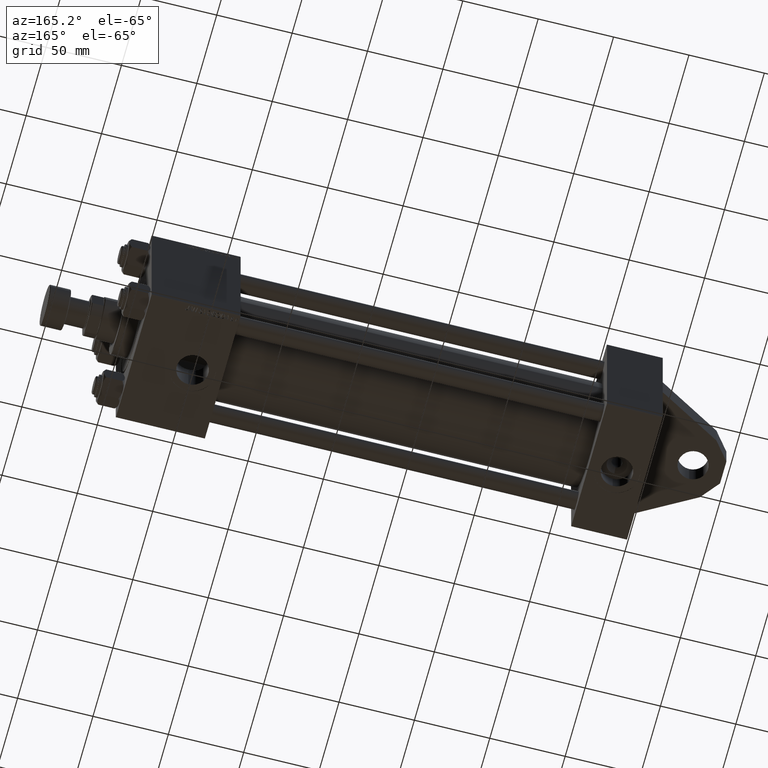
[diagram: clean part render]
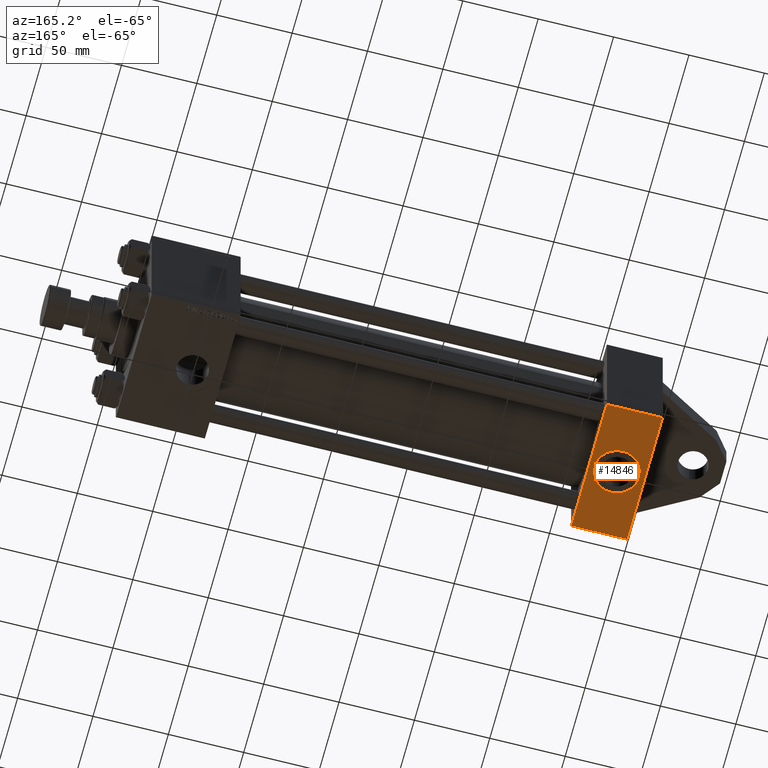
[diagram: same view with one face highlighted and labeled with its STEP entity id]
A machine part, auxiliary view. The second image highlights one B-rep face of the part: STEP entity #14846.
In plain terms, the highlighted planar face has unit normal (0, -0, 1).
Its self-contained STEP definition (entity closure, byte-faithful):
#268 = CIRCLE ( 'NONE', #45816, 15.00000000000000178 ) ;
#504 = CARTESIAN_POINT ( 'NONE',  ( 37.00000000000000000, -45.00000000000000711, 44.49999999999997158 ) ) ;
#836 = EDGE_CURVE ( 'NONE', #8332, #40978, #268, .T. ) ;
#1457 = DIRECTION ( 'NONE',  ( -0.000000000000000000, 1.000000000000000000, 7.709882115452478166E-17 ) ) ;
#3033 = ORIENTED_EDGE ( 'NONE', *, *, #37387, .T. ) ;
#3135 = LINE ( 'NONE', #22288, #22283 ) ;
#3776 = DIRECTION ( 'NONE',  ( 0.000000000000000000, 0.000000000000000000, -1.000000000000000000 ) ) ;
#5208 = CARTESIAN_POINT ( 'NONE',  ( 18.50000000000000000, -45.00000000000000000, -3.469446951953614978E-15 ) ) ;
#5698 = CARTESIAN_POINT ( 'NONE',  ( 18.50000000000000355, -45.00000000000000000, 14.99999999999999822 ) ) ;
#6830 = VERTEX_POINT ( 'NONE', #46118 ) ;
#8332 = VERTEX_POINT ( 'NONE', #5698 ) ;
#8487 = EDGE_CURVE ( 'NONE', #27273, #17897, #18452, .T. ) ;
#8751 = ORIENTED_EDGE ( 'NONE', *, *, #836, .F. ) ;
#8826 = PLANE ( 'NONE',  #9294 ) ;
#9294 = AXIS2_PLACEMENT_3D ( 'NONE', #35137, #1457, #39301 ) ;
#10035 = DIRECTION ( 'NONE',  ( -1.000000000000000000, 0.000000000000000000, 0.000000000000000000 ) ) ;
#10051 = ORIENTED_EDGE ( 'NONE', *, *, #22357, .F. ) ;
#11437 = VECTOR ( 'NONE', #18301, 1000.000000000000000 ) ;
#14112 = EDGE_LOOP ( 'NONE', ( #10051, #8751 ) ) ;
#14194 = ORIENTED_EDGE ( 'NONE', *, *, #42780, .T. ) ;
#14745 = CARTESIAN_POINT ( 'NONE',  ( 37.00000000000000000, -45.00000000000000711, 45.00000000000000000 ) ) ;
#14846 = ADVANCED_FACE ( 'NONE', ( #27507, #27750 ), #8826, .F. ) ;
#14883 = DIRECTION ( 'NONE',  ( 1.000000000000000000, 0.000000000000000000, 0.000000000000000000 ) ) ;
#15054 = CARTESIAN_POINT ( 'NONE',  ( 18.50000000000000000, -45.00000000000000000, -3.469446951953614978E-15 ) ) ;
#15080 = LINE ( 'NONE', #45072, #11437 ) ;
#16739 = DIRECTION ( 'NONE',  ( 0.000000000000000000, -1.000000000000000000, -8.673617379884036705E-17 ) ) ;
#17897 = VERTEX_POINT ( 'NONE', #30123 ) ;
#18046 = EDGE_LOOP ( 'NONE', ( #32935, #3033, #36113, #14194 ) ) ;
#18301 = DIRECTION ( 'NONE',  ( 0.000000000000000000, 7.709882115452476934E-17, -1.000000000000000000 ) ) ;
#18452 = LINE ( 'NONE', #14745, #34309 ) ;
#19216 = CARTESIAN_POINT ( 'NONE',  ( 18.50000000000000000, -45.00000000000000000, -15.00000000000000533 ) ) ;
#22283 = VECTOR ( 'NONE', #14883, 1000.000000000000000 ) ;
#22288 = CARTESIAN_POINT ( 'NONE',  ( 37.00000000000000000, -45.00000000000000000, -44.49999999999998579 ) ) ;
#22357 = EDGE_CURVE ( 'NONE', #40978, #8332, #33101, .T. ) ;
#24134 = DIRECTION ( 'NONE',  ( 0.000000000000000000, 0.000000000000000000, -1.000000000000000000 ) ) ;
#27273 = VERTEX_POINT ( 'NONE', #504 ) ;
#27507 = FACE_BOUND ( 'NONE', #14112, .T. ) ;
#27750 = FACE_OUTER_BOUND ( 'NONE', #18046, .T. ) ;
#30123 = CARTESIAN_POINT ( 'NONE',  ( 37.00000000000000000, -45.00000000000000000, -44.49999999999995737 ) ) ;
#32935 = ORIENTED_EDGE ( 'NONE', *, *, #45443, .T. ) ;
#33101 = CIRCLE ( 'NONE', #41704, 15.00000000000000178 ) ;
#34309 = VECTOR ( 'NONE', #46434, 1000.000000000000000 ) ;
#35137 = CARTESIAN_POINT ( 'NONE',  ( 37.00000000000000000, -45.00000000000000711, 45.00000000000000000 ) ) ;
#36113 = ORIENTED_EDGE ( 'NONE', *, *, #8487, .F. ) ;
#36839 = CARTESIAN_POINT ( 'NONE',  ( 0.000000000000000000, -45.00000000000000711, 44.49999999999997158 ) ) ;
#37387 = EDGE_CURVE ( 'NONE', #6830, #17897, #3135, .T. ) ;
#37435 = DIRECTION ( 'NONE',  ( 0.000000000000000000, -1.000000000000000000, -8.673617379884036705E-17 ) ) ;
#39301 = DIRECTION ( 'NONE',  ( 0.000000000000000000, -7.709882115452478166E-17, 1.000000000000000000 ) ) ;
#39444 = VERTEX_POINT ( 'NONE', #36839 ) ;
#40978 = VERTEX_POINT ( 'NONE', #19216 ) ;
#41704 = AXIS2_PLACEMENT_3D ( 'NONE', #15054, #37435, #3776 ) ;
#42780 = EDGE_CURVE ( 'NONE', #27273, #39444, #48112, .T. ) ;
#43564 = VECTOR ( 'NONE', #10035, 1000.000000000000000 ) ;
#43702 = CARTESIAN_POINT ( 'NONE',  ( 37.00000000000000000, -45.00000000000000711, 44.49999999999997158 ) ) ;
#45072 = CARTESIAN_POINT ( 'NONE',  ( 0.000000000000000000, -45.00000000000000711, 45.00000000000000000 ) ) ;
#45443 = EDGE_CURVE ( 'NONE', #39444, #6830, #15080, .T. ) ;
#45816 = AXIS2_PLACEMENT_3D ( 'NONE', #5208, #16739, #24134 ) ;
#46118 = CARTESIAN_POINT ( 'NONE',  ( 0.000000000000000000, -45.00000000000000000, -44.49999999999995737 ) ) ;
#46434 = DIRECTION ( 'NONE',  ( 0.000000000000000000, 7.709882115452476934E-17, -1.000000000000000000 ) ) ;
#48112 = LINE ( 'NONE', #43702, #43564 ) ;